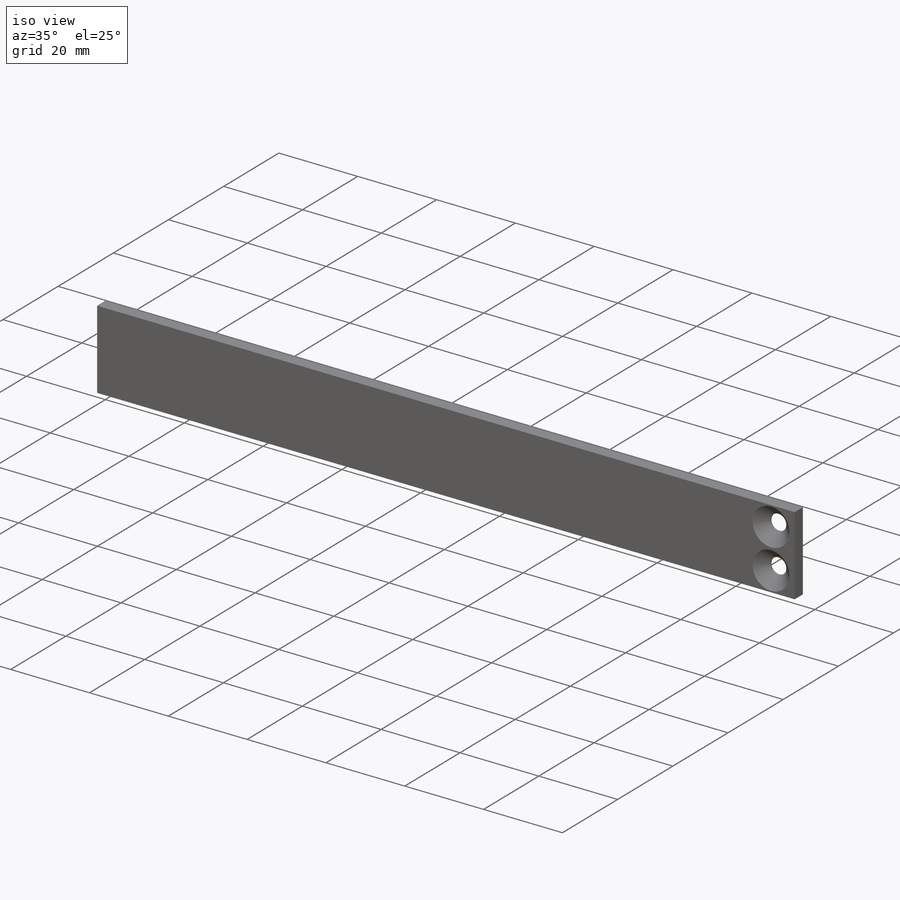
[diagram: iso view]
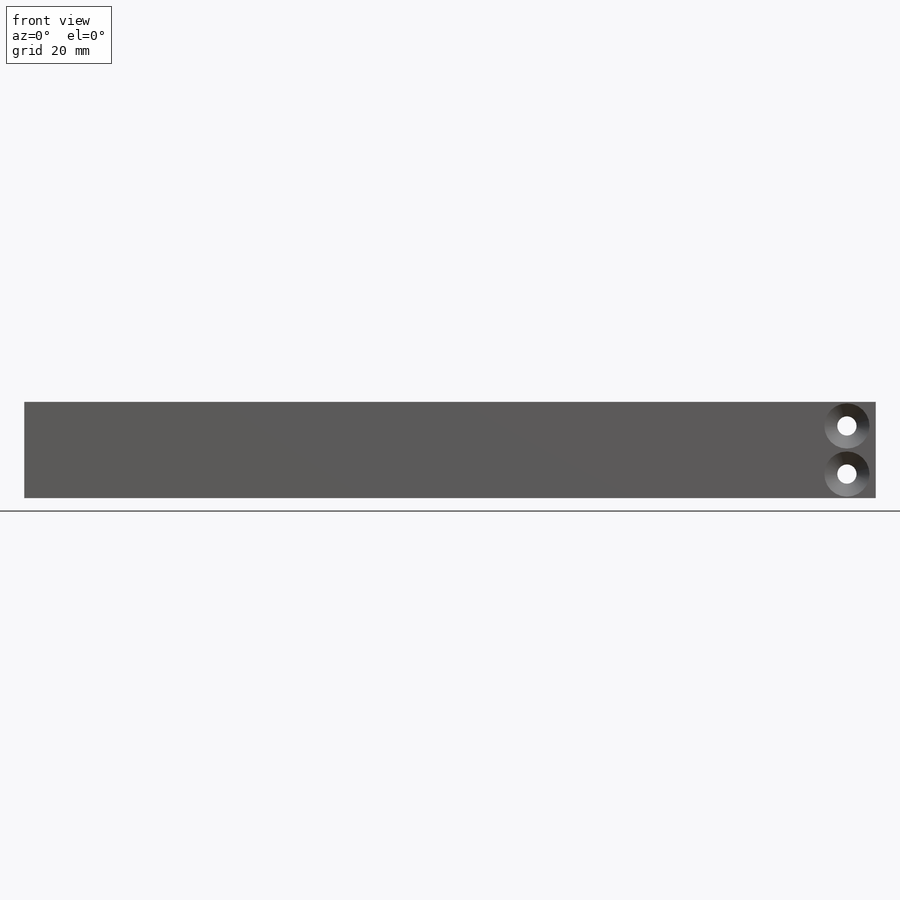
[diagram: front view]
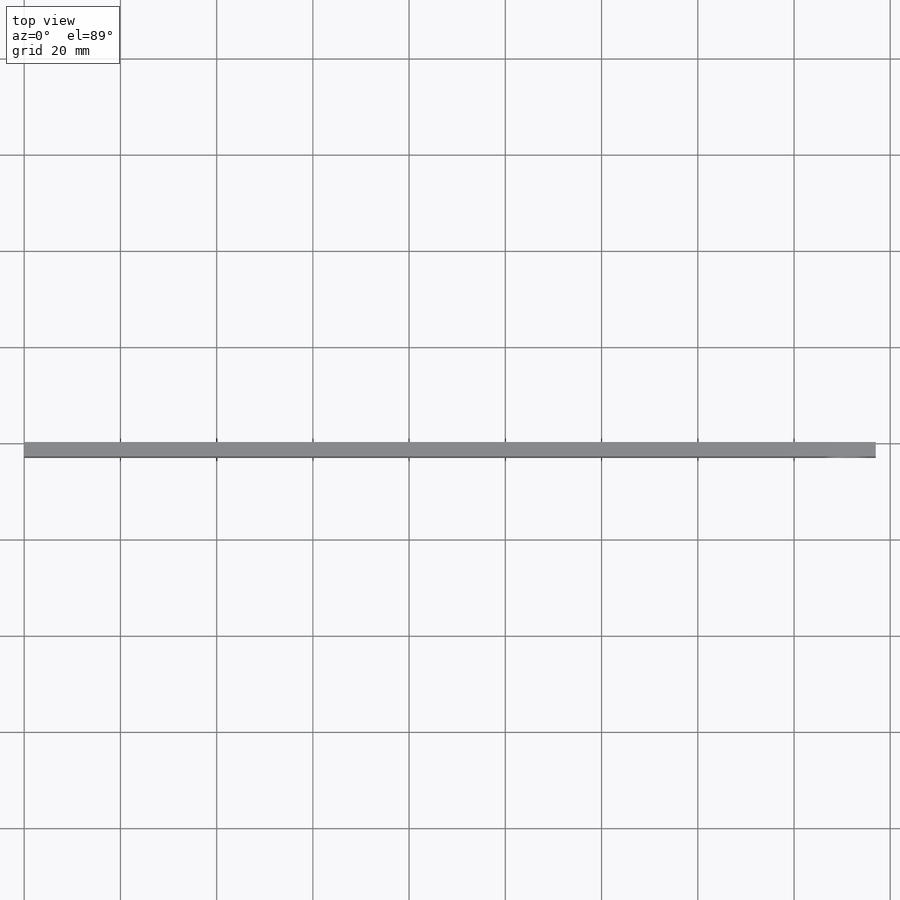
[diagram: top view]
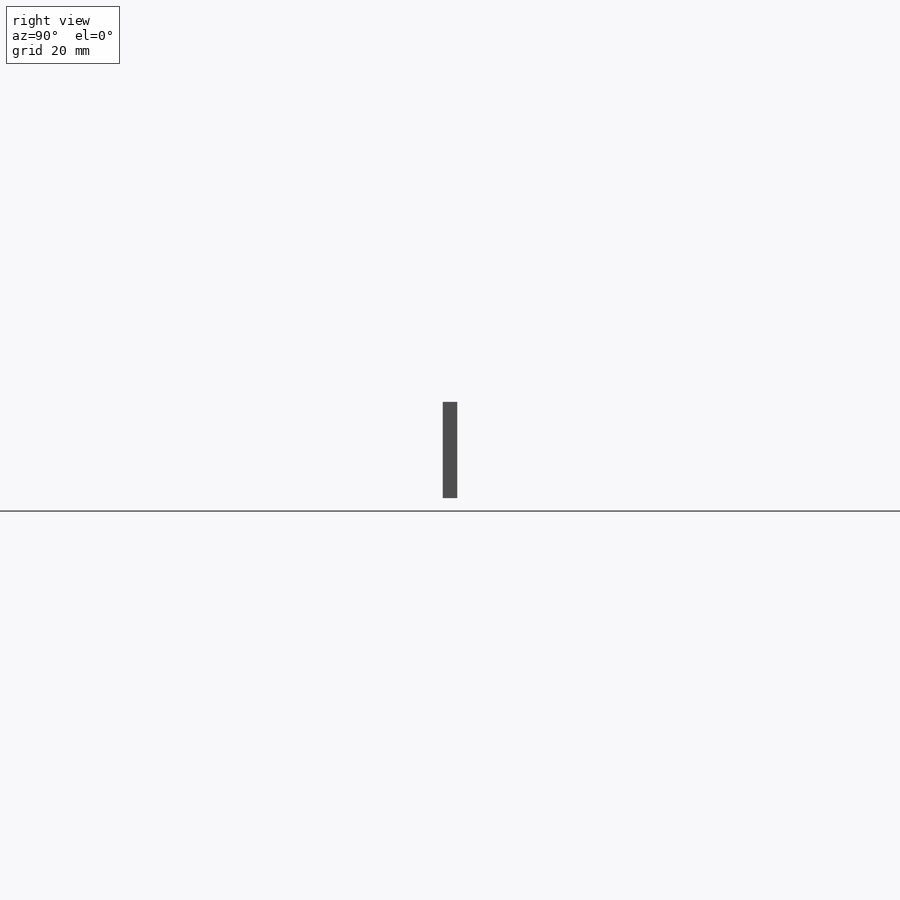
[diagram: right view]
SOLIDWORKS PART (.sldprt)
format: sldprt  version: not decoded by parser v0  size: 172,032 bytes
history: native  units: mm
features: plane x3, sketch x3, cut_extrude x2, chamfer x2, material x1, extrude x1 (+9 scaffold rows collapsed)
feature tree (21):
  scaffold x9  (default folders/planes/origin — collapsed)
  material  "Material <nicht festgelegt>"
  plane  "Ebene vorne"
  plane  "Ebene oben"
  plane  "Ebene rechts"
  sketch  "Skizze1"  dims[D1=177.0mm D2=20.0mm]
  extrude  "Aufsatz-Linear austragen1"  Depth=3mm
  sketch  "Skizze3"  dims[c1.D1=4.0mm c1.D2=4.0mm c1.D4=8.4mm c1.D5=8.4mm c2.D2=5.0mm c2.D3=6.0mm]
  cut_extrude  "Schnitt-Linear austragen1"  Depth=8mm
  chamfer  "Fase1"  Distance=2.7mm Angle=45deg
  sketch  "Skizze5"  dims[c1.D1=4.0mm c1.D3=4.0mm c1.D2=5.0mm c2.D3=6.0mm]
  cut_extrude  "Schnitt-Linear austragen2"  Depth=8mm
  chamfer  "Fase2"  Distance=2.7mm Angle=45deg
decode coverage: 8 of 8 modeling features carry decoded parameters
note: suppression state not decoded; provenance and decode notes live in map.json
